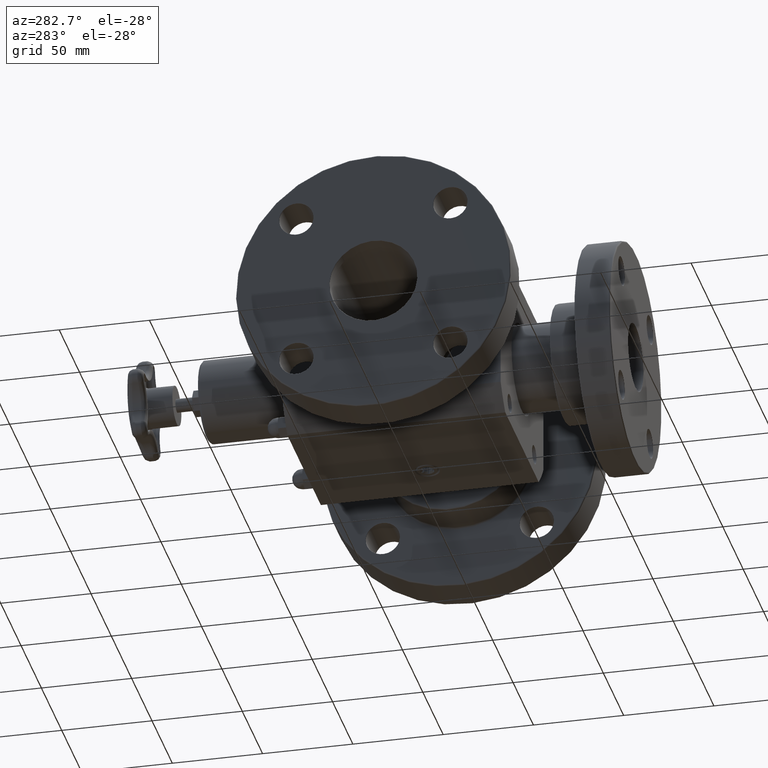
[diagram: clean part render]
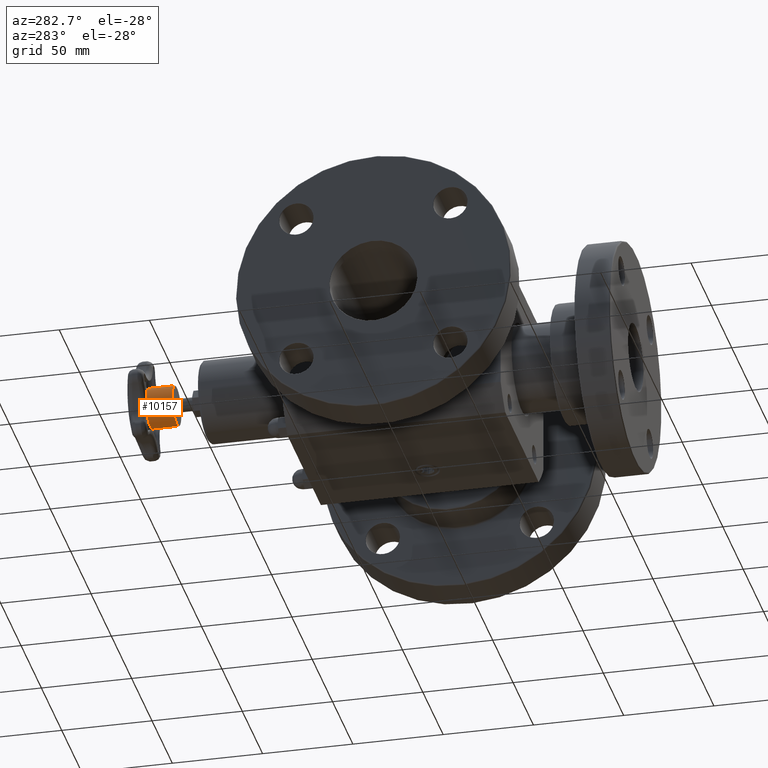
[diagram: same view with one face highlighted and labeled with its STEP entity id]
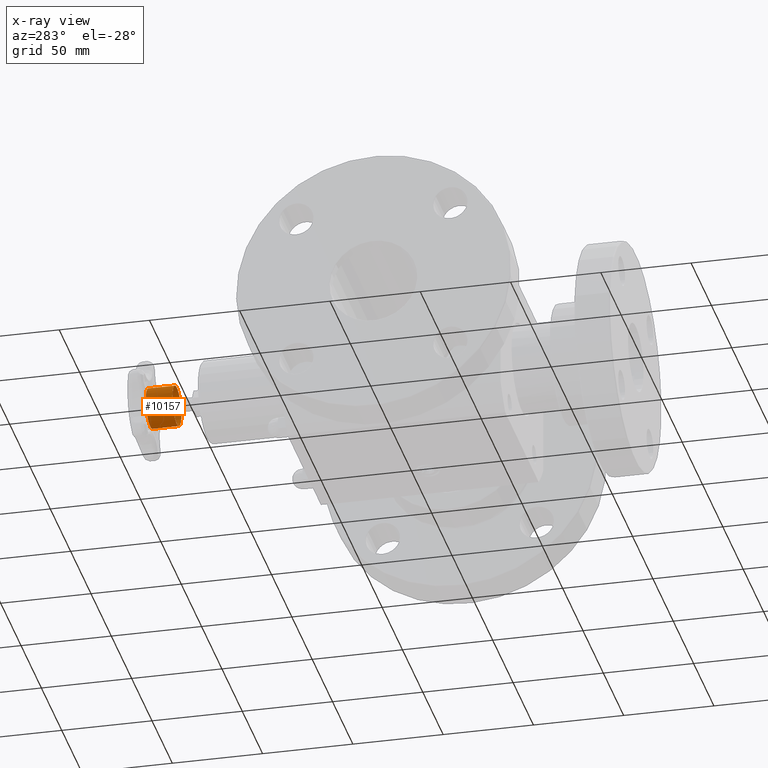
[diagram: x-ray of the same camera — body ghosted, the highlighted face saturated]
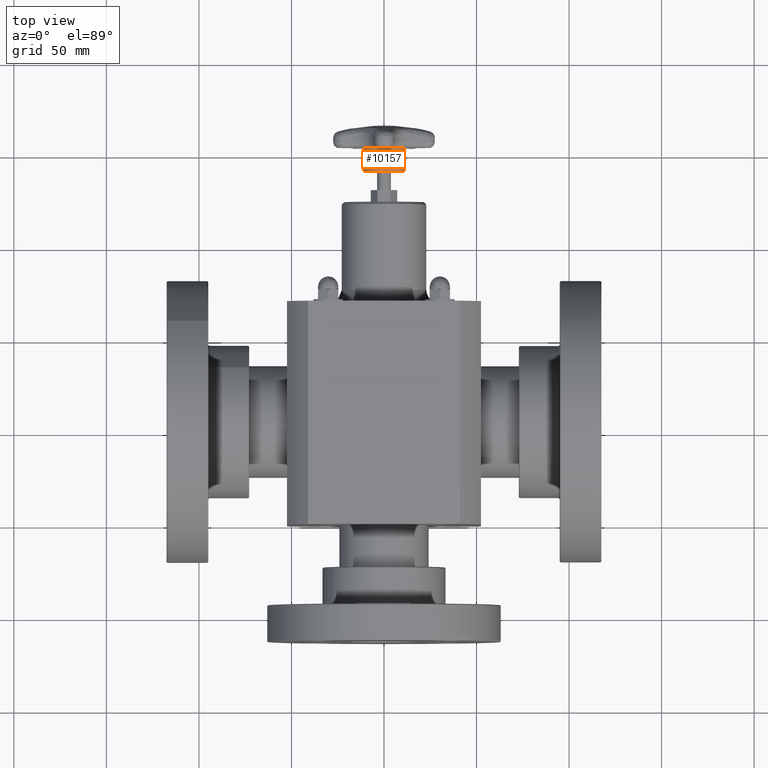
[diagram: same view with one face highlighted and labeled with its STEP entity id]
A machine part, auxiliary view. The second image highlights one B-rep face of the part: STEP entity #10157.
The next image is the same camera in x-ray: the body ghosted, the highlighted face saturated — about 0% of this face is hidden behind the body in this view.
A second angle (top view) of the same face is appended — the face is thin or edge-on in the first view.
In plain terms, the highlighted cylindrical surface (bore or boss wall) has radius 11.049 mm, axis along (0, -1, -0).
Its self-contained STEP definition (entity closure, byte-faithful):
#797=CARTESIAN_POINT('',(0.434999999999993,7.525500000000000,-2.622574E-016));
#798=VERTEX_POINT('',#797);
#799=CARTESIAN_POINT('',(-7.149575E-015,7.525500000000000,-2.622574E-016));
#800=DIRECTION('',(0.0,-1.0,0.0));
#801=DIRECTION('',(1.0,0.0,0.0));
#802=AXIS2_PLACEMENT_3D('',#799,#800,#801);
#803=CIRCLE('',#802,0.435000000000000);
#804=EDGE_CURVE('',#798,#798,#803,.T.);
#9842=CARTESIAN_POINT('',(0.434999999999992,8.105500000000001,-6.332525E-016));
#9843=VERTEX_POINT('',#9842);
#9844=CARTESIAN_POINT('',(-7.627105E-015,8.105499999999999,-2.622574E-016));
#9845=DIRECTION('',(0.0,1.0,0.0));
#9846=DIRECTION('',(-1.0,0.0,0.0));
#9847=AXIS2_PLACEMENT_3D('',#9844,#9845,#9846);
#9848=CIRCLE('',#9847,0.435000000000000);
#9849=EDGE_CURVE('',#9843,#9843,#9848,.T.);
#10146=CARTESIAN_POINT('',(-7.355407E-015,7.775500000000001,-2.622574E-016));
#10147=DIRECTION('',(8.233276E-016,-1.0,-8.801940E-032));
#10148=DIRECTION('',(1.0,0.0,0.0));
#10149=AXIS2_PLACEMENT_3D('',#10146,#10147,#10148);
#10150=CYLINDRICAL_SURFACE('',#10149,0.435000000000000);
#10151=ORIENTED_EDGE('',*,*,#804,.F.);
#10152=EDGE_LOOP('',(#10151));
#10153=FACE_OUTER_BOUND('',#10152,.T.);
#10154=ORIENTED_EDGE('',*,*,#9849,.F.);
#10155=EDGE_LOOP('',(#10154));
#10156=FACE_BOUND('',#10155,.T.);
#10157=ADVANCED_FACE('',(#10153,#10156),#10150,.T.);